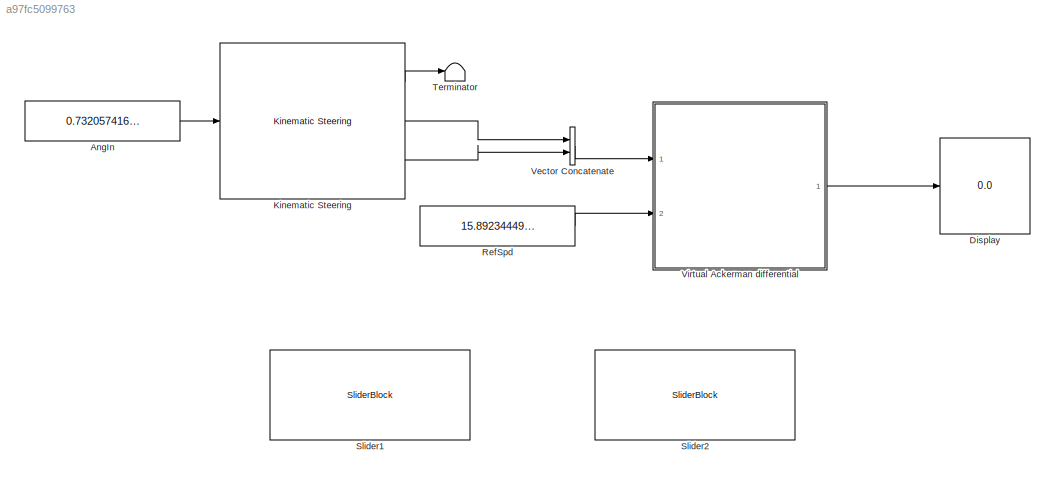
MODEL slx_a97fc5099763
KIND model
CONFIG AbsTol = auto
CONFIG EnableMultiTasking = off
CONFIG FixedStep = auto
CONFIG MaxStep = auto
CONFIG MinStep = auto
CONFIG RelTol = 1e-3
CONFIG SampleTimeConstraint = Unconstrained
CONFIG Solver = VariableStepAuto
CONFIG SolverName = VariableStepAuto
CONFIG StartTime = 0.0
CONFIG StopTime = 30
BLOCK [Constant] AngIn
  Value = 0.7320574162679425
BLOCK [Display] Display
  Decimation = 1
  Ports = [1]
BLOCK [Reference] Kinematic Steering  REF=vehdynlibsteering/Kinematic Steering
  Ports = [1, 3]
  SourceBlock = vehdynlibsteering/Kinematic Steering
  SourceProductBaseCode = VE
  SourceProductName = Vehicle Dynamics Blockset
  SourceType = Kinematic Steering
BLOCK [Constant] RefSpd
  Value = 15.89234449760766
BLOCK [SliderBlock] Slider1
  ScaleMax = 1
  ScaleMin = -1
  TickInterval = 0.5
BLOCK [SliderBlock] Slider2
  ScaleMax = 40
  ScaleMin = -8
  TickInterval = 8
BLOCK [Terminator] Terminator
BLOCK [Concatenate] Vector Concatenate
  Ports = [2, 1]
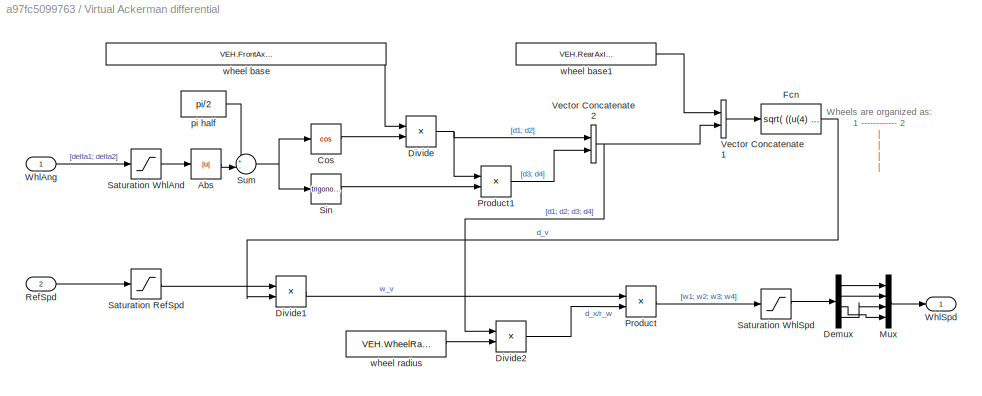
BLOCK [SubSystem] Virtual Ackerman differential
  Ports = [2, 1]
  RequestExecContextInheritance = off
BLOCK [Abs] Virtual Ackerman differential/Abs
  SaturateOnIntegerOverflow = off
BLOCK [Trigonometry] Virtual Ackerman differential/Cos
  Operator = cos
  Ports = [1, 1]
BLOCK [Demux] Virtual Ackerman differential/Demux
  DisplayOption = bar
  Ports = [1, 4]
BLOCK [Product] Virtual Ackerman differential/Divide
  InputSameDT = off
  Inputs = */
  OutDataTypeStr = Inherit: Inherit via internal rule
  Ports = [2, 1]
  RndMeth = Floor
  SaturateOnIntegerOverflow = off
BLOCK [Product] Virtual Ackerman differential/Divide1
  InputSameDT = off
  Inputs = */
  OutDataTypeStr = Inherit: Inherit via internal rule
  Ports = [2, 1]
  RndMeth = Floor
  SaturateOnIntegerOverflow = off
BLOCK [Product] Virtual Ackerman differential/Divide2
  InputSameDT = off
  Inputs = */
  OutDataTypeStr = Inherit: Inherit via internal rule
  Ports = [2, 1]
  RndMeth = Floor
  SaturateOnIntegerOverflow = off
BLOCK [Fcn] Virtual Ackerman differential/Fcn
  Expr = sqrt( ((u(4) + u(5))/ 2)^2 + u(1)^2 )
BLOCK [Mux] Virtual Ackerman differential/Mux
  DisplayOption = bar
  Ports = [4, 1]
BLOCK [Product] Virtual Ackerman differential/Product
  InputSameDT = off
  OutDataTypeStr = Inherit: Inherit via internal rule
  Ports = [2, 1]
  RndMeth = Floor
  SaturateOnIntegerOverflow = off
BLOCK [Product] Virtual Ackerman differential/Product1
  InputSameDT = off
  OutDataTypeStr = Inherit: Inherit via internal rule
  Ports = [2, 1]
  RndMeth = Floor
  SaturateOnIntegerOverflow = off
BLOCK [Inport] Virtual Ackerman differential/RefSpd
  IconDisplay = Port number
  Port = 2
BLOCK [Saturate] Virtual Ackerman differential/Saturation RefSpd
  InputPortMap = u0
  LowerLimit = -120
  Ports = [1, 1]
  UpperLimit = 120
BLOCK [Saturate] Virtual Ackerman differential/Saturation WhlAnd
  InputPortMap = u0
  LowerLimit = -pi*5/12
  Ports = [1, 1]
  UpperLimit = pi*5/12
BLOCK [Saturate] Virtual Ackerman differential/Saturation WhlSpd
  InputPortMap = u0
  LowerLimit = -600
  Ports = [1, 1]
  UpperLimit = 600
BLOCK [Trigonometry] Virtual Ackerman differential/Sin
  Ports = [1, 1]
BLOCK [Sum] Virtual Ackerman differential/Sum
  IconShape = round
  InputSameDT = off
  Inputs = +-|
  OutDataTypeStr = Inherit: Inherit via internal rule
  Ports = [2, 1]
  SaturateOnIntegerOverflow = off
BLOCK [Concatenate] Virtual Ackerman differential/Vector Concatenate1
  Ports = [2, 1]
BLOCK [Concatenate] Virtual Ackerman differential/Vector Concatenate2
  Ports = [2, 1]
BLOCK [Inport] Virtual Ackerman differential/WhlAng
  IconDisplay = Port number
BLOCK [Outport] Virtual Ackerman differential/WhlSpd
  IconDisplay = Port number
BLOCK [Constant] Virtual Ackerman differential/pi half
  Value = pi/2
BLOCK [Constant] Virtual Ackerman differential/wheel base
  Value = VEH.FrontAxlePositionfromCG+VEH.RearAxlePositionfromCG
BLOCK [Constant] Virtual Ackerman differential/wheel base1
  Value = VEH.RearAxlePositionfromCG
BLOCK [Constant] Virtual Ackerman differential/wheel radius
  Value = VEH.WheelRadius
ANNOTATION Virtual Ackerman differential: Wheels are organized as: 1 ------------ 2 | | | | 3 ------------ 4 But output inverting 3 and 4 (for easier integration)
LINE AngIn:1 -> Kinematic Steering:1
LINE Kinematic Steering:1 -> Terminator:1
LINE Kinematic Steering:2 -> Vector Concatenate:1
LINE Kinematic Steering:3 -> Vector Concatenate:2
LINE RefSpd:1 -> Virtual Ackerman differential:2
LINE Vector Concatenate:1 -> Virtual Ackerman differential:1
LINE Virtual Ackerman differential/Abs:1 -> Virtual Ackerman differential/Sum:2
LINE Virtual Ackerman differential/Cos:1 -> Virtual Ackerman differential/Divide:2
LINE Virtual Ackerman differential/Demux:1 -> Virtual Ackerman differential/Mux:1
LINE Virtual Ackerman differential/Demux:2 -> Virtual Ackerman differential/Mux:2
LINE Virtual Ackerman differential/Demux:3 -> Virtual Ackerman differential/Mux:4
LINE Virtual Ackerman differential/Demux:4 -> Virtual Ackerman differential/Mux:3
LINE Virtual Ackerman differential/Divide1:1 -> Virtual Ackerman differential/Product:1
LINE Virtual Ackerman differential/Divide2:1 -> Virtual Ackerman differential/Product:2
NET Virtual Ackerman differential/Divide:1 -> Virtual Ackerman differential/Product1:1, Virtual Ackerman differential/Vector Concatenate2:1
LINE Virtual Ackerman differential/Fcn:1 -> Virtual Ackerman differential/Divide1:2
LINE Virtual Ackerman differential/Mux:1 -> Virtual Ackerman differential/WhlSpd:1
LINE Virtual Ackerman differential/Product1:1 -> Virtual Ackerman differential/Vector Concatenate2:2
LINE Virtual Ackerman differential/Product:1 -> Virtual Ackerman differential/Saturation WhlSpd:1
LINE Virtual Ackerman differential/RefSpd:1 -> Virtual Ackerman differential/Saturation RefSpd:1
LINE Virtual Ackerman differential/Saturation RefSpd:1 -> Virtual Ackerman differential/Divide1:1
LINE Virtual Ackerman differential/Saturation WhlAnd:1 -> Virtual Ackerman differential/Abs:1
LINE Virtual Ackerman differential/Saturation WhlSpd:1 -> Virtual Ackerman differential/Demux:1
LINE Virtual Ackerman differential/Sin:1 -> Virtual Ackerman differential/Product1:2
NET Virtual Ackerman differential/Sum:1 -> Virtual Ackerman differential/Cos:1, Virtual Ackerman differential/Sin:1
LINE Virtual Ackerman differential/Vector Concatenate1:1 -> Virtual Ackerman differential/Fcn:1
NET Virtual Ackerman differential/Vector Concatenate2:1 -> Virtual Ackerman differential/Divide2:1, Virtual Ackerman differential/Vector Concatenate1:2
LINE Virtual Ackerman differential/WhlAng:1 -> Virtual Ackerman differential/Saturation WhlAnd:1
LINE Virtual Ackerman differential/pi half:1 -> Virtual Ackerman differential/Sum:1
LINE Virtual Ackerman differential/wheel base1:1 -> Virtual Ackerman differential/Vector Concatenate1:1
LINE Virtual Ackerman differential/wheel base:1 -> Virtual Ackerman differential/Divide:1
LINE Virtual Ackerman differential/wheel radius:1 -> Virtual Ackerman differential/Divide2:2
LINE Virtual Ackerman differential:1 -> Display:1
note: NET lines group one-source signal fan-out (src -> all destinations, sorted); 1:1 wires keep LINE
